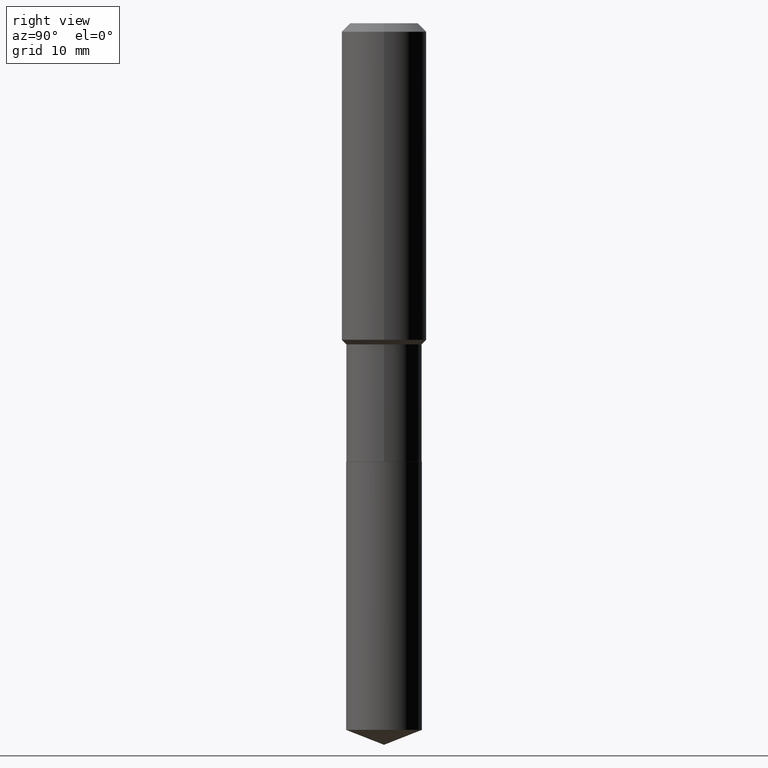
[diagram: clean part render]
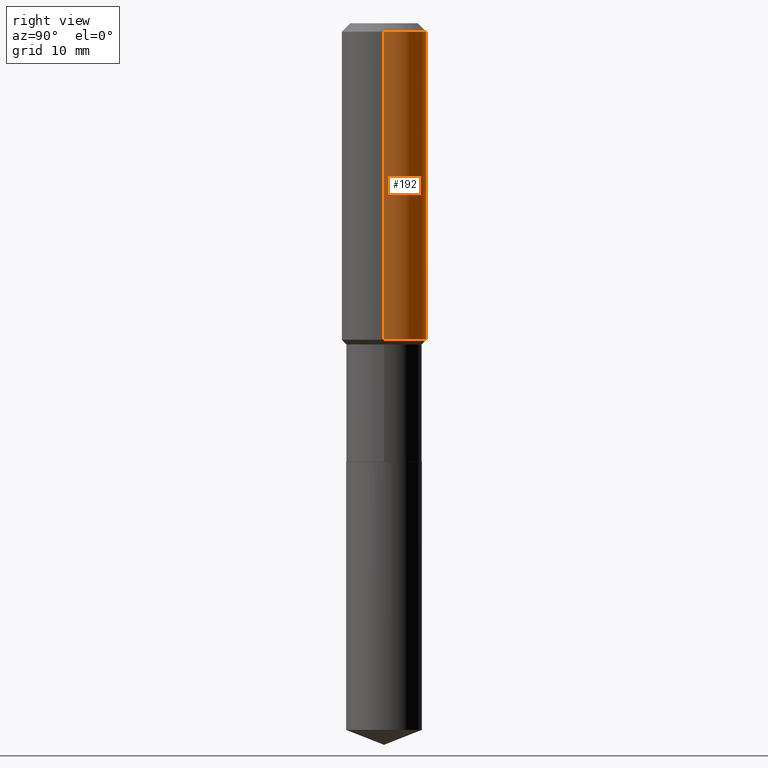
[diagram: same view with one face highlighted and labeled with its STEP entity id]
A machine part, right view. The second image highlights one B-rep face of the part: STEP entity #192.
In plain terms, the highlighted cylindrical surface (partial cylindrical patch) has radius 5.9995 mm, axis along (-0, 0, 1).
Its self-contained STEP definition (entity closure, byte-faithful):
#3 = ORIENTED_EDGE ( 'NONE', *, *, #489, .T. ) ;
#18 = DIRECTION ( 'NONE',  ( 1.000000000000000000, -6.982962677686266711E-15, 4.876176775795935793E-29 ) ) ;
#21 = AXIS2_PLACEMENT_3D ( 'NONE', #401, #199, #351 ) ;
#41 = EDGE_CURVE ( 'NONE', #249, #398, #176, .T. ) ;
#49 = VECTOR ( 'NONE', #427, 39.37007874015748143 ) ;
#87 = EDGE_CURVE ( 'NONE', #434, #163, #464, .T. ) ;
#99 = DIRECTION ( 'NONE',  ( -2.445468806185136597E-29, 3.491481338843145583E-15, 1.000000000000000000 ) ) ;
#141 = EDGE_LOOP ( 'NONE', ( #3, #455, #356, #205 ) ) ;
#160 = CARTESIAN_POINT ( 'NONE',  ( 4.307815575535426705E-29, -6.150418952439141798E-15, -1.761549999999999727 ) ) ;
#163 = VERTEX_POINT ( 'NONE', #239 ) ;
#176 = LINE ( 'NONE', #339, #303 ) ;
#192 = ADVANCED_FACE ( 'NONE', ( #446 ), #399, .T. ) ;
#194 = CIRCLE ( 'NONE', #21, 0.2361999999999999933 ) ;
#199 = DIRECTION ( 'NONE',  ( -2.445468806185136597E-29, 3.491481338843145583E-15, 1.000000000000000000 ) ) ;
#205 = ORIENTED_EDGE ( 'NONE', *, *, #41, .F. ) ;
#215 = DIRECTION ( 'NONE',  ( -2.445468806185136877E-29, 3.491481338843145188E-15, 1.000000000000000000 ) ) ;
#239 = CARTESIAN_POINT ( 'NONE',  ( -0.2361999999999999933, -1.479376323577688976E-15, -0.04724000000000028177 ) ) ;
#249 = VERTEX_POINT ( 'NONE', #269 ) ;
#251 = CARTESIAN_POINT ( 'NONE',  ( 0.000000000000000000, 0.000000000000000000, 0.000000000000000000 ) ) ;
#252 = CARTESIAN_POINT ( 'NONE',  ( 0.2361999999999999933, -1.814313362916447440E-15, -0.04724000000000028177 ) ) ;
#269 = CARTESIAN_POINT ( 'NONE',  ( 0.2362000000000002153, -7.799794736908639901E-15, -1.761549999999999727 ) ) ;
#270 = CARTESIAN_POINT ( 'NONE',  ( -0.2362000000000001043, 1.678301941865357380E-15, -1.161852468318209317E-29 ) ) ;
#271 = DIRECTION ( 'NONE',  ( -2.445468806185136597E-29, 3.491481338843145583E-15, 1.000000000000000000 ) ) ;
#303 = VECTOR ( 'NONE', #215, 39.37007874015748143 ) ;
#339 = CARTESIAN_POINT ( 'NONE',  ( 0.2362000000000001043, -1.649375784469496920E-15, 1.151752954443000508E-29 ) ) ;
#340 = AXIS2_PLACEMENT_3D ( 'NONE', #160, #271, #353 ) ;
#351 = DIRECTION ( 'NONE',  ( 1.000000000000000000, -6.982962677686266711E-15, 0.000000000000000000 ) ) ;
#353 = DIRECTION ( 'NONE',  ( 1.000000000000000000, -6.982962677686266711E-15, 0.000000000000000000 ) ) ;
#356 = ORIENTED_EDGE ( 'NONE', *, *, #474, .F. ) ;
#363 = CIRCLE ( 'NONE', #340, 0.2362000000000002153 ) ;
#377 = AXIS2_PLACEMENT_3D ( 'NONE', #251, #99, #18 ) ;
#398 = VERTEX_POINT ( 'NONE', #252 ) ;
#399 = CYLINDRICAL_SURFACE ( 'NONE', #377, 0.2362000000000001043 ) ;
#401 = CARTESIAN_POINT ( 'NONE',  ( 1.155239464041865506E-30, -1.649375784469511859E-16, -0.04724000000000028177 ) ) ;
#411 = CARTESIAN_POINT ( 'NONE',  ( -0.2362000000000002153, -4.472117010573783826E-15, -1.761549999999999727 ) ) ;
#427 = DIRECTION ( 'NONE',  ( -2.445468806185136877E-29, 3.491481338843145188E-15, 1.000000000000000000 ) ) ;
#434 = VERTEX_POINT ( 'NONE', #411 ) ;
#446 = FACE_OUTER_BOUND ( 'NONE', #141, .T. ) ;
#455 = ORIENTED_EDGE ( 'NONE', *, *, #87, .T. ) ;
#464 = LINE ( 'NONE', #270, #49 ) ;
#474 = EDGE_CURVE ( 'NONE', #398, #163, #194, .T. ) ;
#489 = EDGE_CURVE ( 'NONE', #249, #434, #363, .T. ) ;